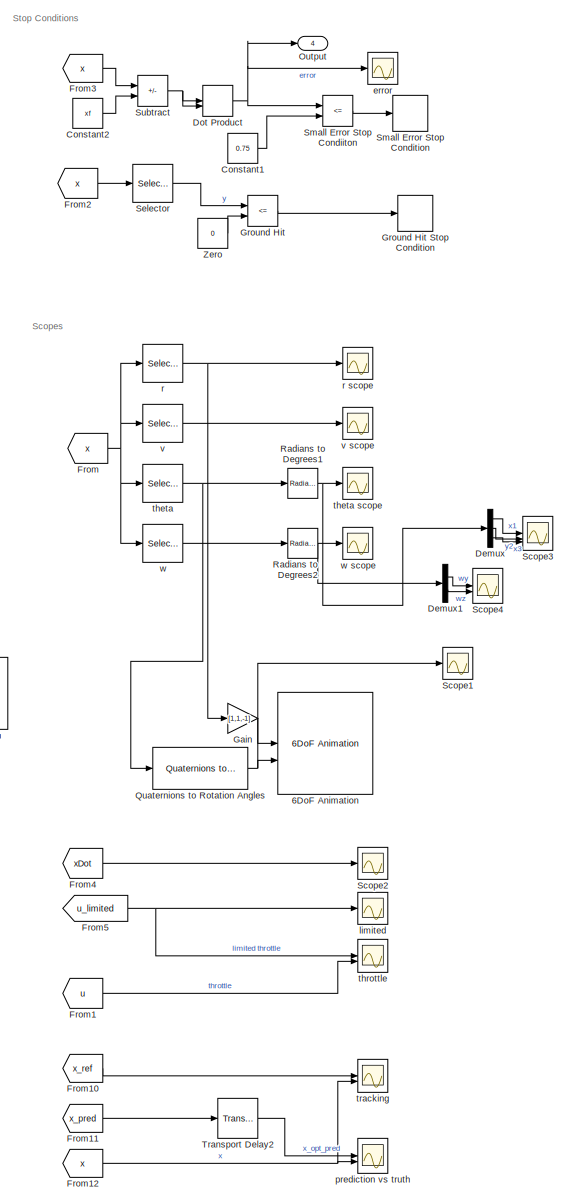
[diagram: root canvas - part 1/2, right side, full height]
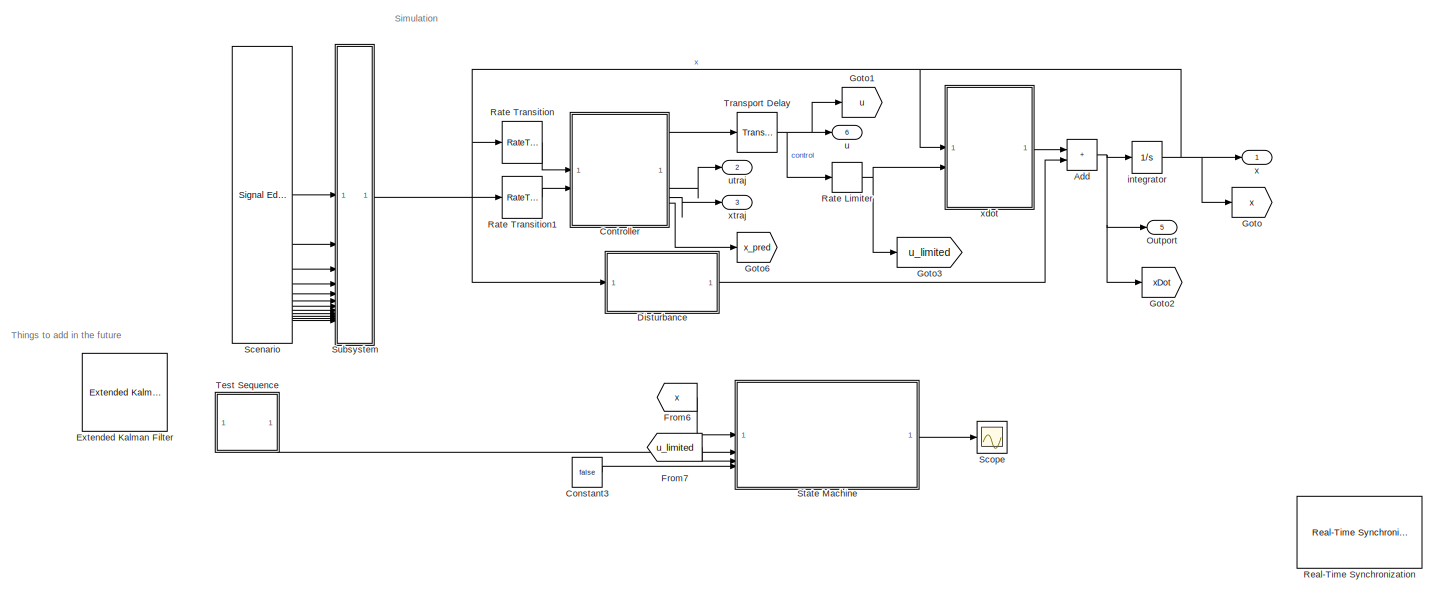
[diagram: root canvas - part 2/2, central region]
MODEL slx_a01fa81424ea
KIND model
CONFIG AbsTol = auto
CONFIG EnableMultiTasking = off
CONFIG FixedStep = auto
CONFIG MaxStep = auto
CONFIG MinStep = auto
CONFIG RelTol = 1e-3
CONFIG SampleTimeConstraint = Unconstrained
CONFIG SolverName = VariableStepAuto
CONFIG StartTime = 0.0
CONFIG StopTime = 5
WORKSPACE source: mxarray member
WORKSPACE com_error = 0
WORKSPACE controller_type: ControllerType (value not decoded)
WORKSPACE cost_u = [1 0 0]
WORKSPACE cost_x = [0 0 0 0 0 0 0 0 0 0 1]
WORKSPACE discrepancy = 0.5
WORKSPACE dof: object (value not decoded)
WORKSPACE dtime = 0.3
WORKSPACE enable_turbulence = 0
WORKSPACE g = 9.8
WORKSPACE inertia_error = 0
WORKSPACE mass_error = 0
WORKSPACE max_gimbal_rate = 5
WORKSPACE max_iter = 400
WORKSPACE max_throttle_rate = 0.5
WORKSPACE nominal_val = 5
WORKSPACE optimization_time = 0.5
WORKSPACE steps = 50
WORKSPACE stop_time = 100
WORKSPACE u0 = [0 0 0]
WORKSPACE vehicle: Vehicle (value not decoded)
WORKSPACE x0 = [0 100 100 0 0 0 0 -1.57079632679 0 0 0]
WORKSPACE xf = [0 0 0 0 0 0 0 -1.57079632679 0 0 0]
BLOCK [Reference] 6DoF Animation  REF=aerolibanim/6DoF Animation
  SourceBlock = aerolibanim/6DoF Animation
  SourceType = 6DoF_Animation
BLOCK [Sum] Add
  IconShape = rectangular
BLOCK [Constant] Constant1
  Value = 0.75
BLOCK [Constant] Constant2
  Value = xf
BLOCK [Constant] Constant3
  Value = false
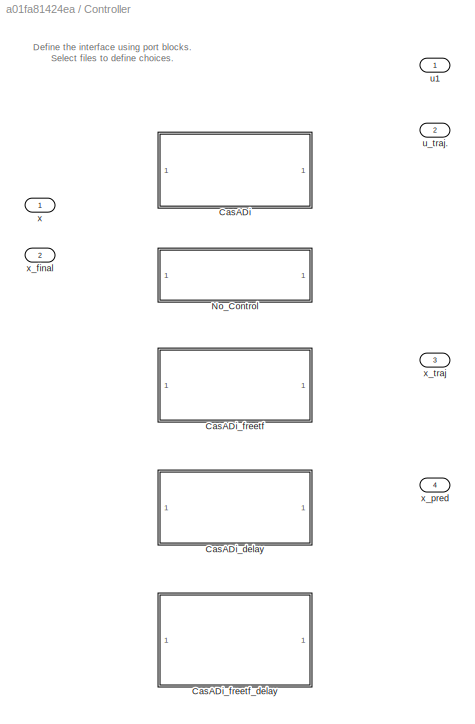
BLOCK [SubSystem] Controller
  Variant = on
  VariantChoicesEnumeration = ControllerType
  VariantChoicesSpecifier = {}
  VariantControlVariable = controller_type
BLOCK [SubSystem] Controller/CasADi
  ReferencedSubsystem = CasADi
  VariantControl = controller_type == ControllerType.CasADi
BLOCK [SubSystem] Controller/CasADi_delay
  ReferencedSubsystem = CasADi_delay
  VariantControl = controller_type == ControllerType.CasADi_delay
BLOCK [SubSystem] Controller/CasADi_freetf
  ReferencedSubsystem = CasADi_freetf
  VariantControl = controller_type == ControllerType.CasADi_freetf
BLOCK [SubSystem] Controller/CasADi_freetf_delay
  ReferencedSubsystem = CasADi_freetf_delay
  VariantControl = controller_type == ControllerType.CasADi_freetf_delay
BLOCK [SubSystem] Controller/No_Control
  ReferencedSubsystem = No_Control
  VariantControl = controller_type == ControllerType.No_Control
BLOCK [Outport] Controller/u1
BLOCK [Outport] Controller/u_traj.
  Port = 2
BLOCK [Inport] Controller/x
BLOCK [Inport] Controller/x_final
  Port = 2
BLOCK [Outport] Controller/x_pred
  Port = 4
BLOCK [Outport] Controller/x_traj
  Port = 3
BLOCK [Demux] Demux
  Outputs = 3
BLOCK [Demux] Demux1
  Outputs = 2
BLOCK [SubSystem] Disturbance
  ReferencedSubsystem = Disturbance
BLOCK [DotProduct] Dot Product
  OutDataTypeStr = Inherit: Inherit via internal rule
BLOCK [Reference] Extended Kalman Filter  REF=sharedTrackingLibrary/Extended Kalman Filter
  Commented = on
  LibrarySourceBlock = cstblocks/State Estimation/Extended Kalman Filter
  SourceBlock = sharedTrackingLibrary/Extended Kalman Filter
  SourceType = Extended Kalman Filter
BLOCK [From] From
  GotoTag = x
BLOCK [From] From1
  GotoTag = u
BLOCK [From] From10
  GotoTag = x_ref
BLOCK [From] From11
  GotoTag = x_pred
BLOCK [From] From12
  GotoTag = x
BLOCK [From] From2
  GotoTag = x
BLOCK [From] From3
  GotoTag = x
BLOCK [From] From4
  GotoTag = xDot
BLOCK [From] From5
  GotoTag = u_limited
BLOCK [From] From6
  GotoTag = x
BLOCK [From] From7
  GotoTag = u_limited
BLOCK [Gain] Gain
  Gain = [1,1,-1]
BLOCK [Goto] Goto
  GotoTag = x
BLOCK [Goto] Goto1
  GotoTag = u
BLOCK [Goto] Goto2
  GotoTag = xDot
BLOCK [Goto] Goto3
  GotoTag = u_limited
BLOCK [Goto] Goto6
  GotoTag = x_pred
BLOCK [RelationalOperator] Ground Hit
  InputSameDT = off
  Operator = <=
  OutDataTypeStr = boolean
  RndMeth = Simplest
BLOCK [Stop] Ground Hit Stop Condition
BLOCK [Outport] Outport
  Port = 5
  SignalName = x_dot
BLOCK [Outport] Output
  Port = 4
  SignalName = error
BLOCK [Reference] Quaternions to Rotation Angles  REF=sharedtransform/Quaternions to Rotation Angles
  AttributesFormatString = Rotation Order: %<rotationOrder>
  LibrarySourceBlock = aerolibtransform2/Quaternions to Rotation Angles
  SourceBlock = sharedtransform/Quaternions to Rotation Angles
  SourceType = Quat2Ang
BLOCK [Reference] Radians to Degrees1  REF=simulink_extras/Transformations/Radians
to Degrees
  SourceBlock = simulink_extras/Transformations/Radians\nto Degrees
  SourceType = RadiansToDegrees
BLOCK [Reference] Radians to Degrees2  REF=simulink_extras/Transformations/Radians
to Degrees
  SourceBlock = simulink_extras/Transformations/Radians\nto Degrees
  SourceType = RadiansToDegrees
BLOCK [RateLimiter] Rate Limiter
  FallingSlewLimit = -max_throttle_rate *100
  InitialCondition = u0
  RisingSlewLimit = max_throttle_rate*100
  SampleTimeMode = inherited
BLOCK [RateTransition] Rate Transition
  InitialCondition = x0
  OutPortSampleTime = optimization_time
BLOCK [RateTransition] Rate Transition1
  InitialCondition = xf
  OutPortSampleTime = optimization_time
BLOCK [Reference] Real-Time Synchronization  REF=sldrtlib/Real-Time
Synchronization
  SourceBlock = sldrtlib/Real-Time\nSynchronization
  SourceType = Simulink Desktop Real-Time Synchronization
BLOCK [Reference] Scenario  REF=SignalEditorBlockLib/Signal Editor
  LibrarySourceBlock = simulink/Sources/Signal Editor
  SourceBlock = SignalEditorBlockLib/Signal Editor
  SourceType = SignalEditor
  UserDataPersistent = on
BLOCK [Scope] Scope
  Floating = off
  NumInputPorts = 1
  ScopeSpecificationString = Simulink.scopes.TimeScopeBlockCfg('CurrentConfiguration', extmgr.ConfigurationSet(extmgr.Configuration('Core','General UI',true),extmgr.Configuration('Core','Source UI',true),extmgr.Configuration('Sources','WiredSimulink',true,'DataLoggingVariableName','ScopeData11'),extmgr.Configuration('Visuals','Time Domain',true,'SerializedDisplays',{struct('MinYLimReal','0.75','MaxYLimReal','3.25','YLabelReal...<+1461ch>
BLOCK [Scope] Scope1
  Floating = off
  NumInputPorts = 1
  ScopeSpecificationString = Simulink.scopes.TimeScopeBlockCfg('CurrentConfiguration', extmgr.ConfigurationSet(extmgr.Configuration('Core','General UI',true),extmgr.Configuration('Core','Source UI',true),extmgr.Configuration('Sources','WiredSimulink',true,'DataLoggingVariableName','ScopeData9'),extmgr.Configuration('Visuals','Time Domain',true,'SerializedDisplays',{struct('MinYLimReal','-2.68145','MaxYLimReal','3.7886','YLabe...<+1590ch>
BLOCK [Scope] Scope2
  Floating = off
  NumInputPorts = 1
  ScopeSpecificationString = Simulink.scopes.TimeScopeBlockCfg('CurrentConfiguration', extmgr.ConfigurationSet(extmgr.Configuration('Core','General UI',true),extmgr.Configuration('Core','Source UI',true),extmgr.Configuration('Sources','WiredSimulink',true,'DataLoggingVariableName','ScopeData11'),extmgr.Configuration('Visuals','Time Domain',true,'SerializedDisplays',{struct('MinYLimReal','-51.1711','MaxYLimReal','35.55627','YL...<+1540ch>
BLOCK [Scope] Scope3
  Floating = off
  NumInputPorts = 3
  ScopeSpecificationString = Simulink.scopes.TimeScopeBlockCfg('CurrentConfiguration', extmgr.ConfigurationSet(extmgr.Configuration('Core','General UI',true),extmgr.Configuration('Core','Source UI',true),extmgr.Configuration('Sources','WiredSimulink',true,'DataLoggingVariableName','ScopeData10'),extmgr.Configuration('Visuals','Time Domain',true,'SerializedDisplays',{struct('MinYLimReal','-106.01867','MaxYLimReal','54.16803','...<+1498ch>
BLOCK [Scope] Scope4
  Floating = off
  NumInputPorts = 2
  ScopeSpecificationString = Simulink.scopes.TimeScopeBlockCfg('CurrentConfiguration', extmgr.ConfigurationSet(extmgr.Configuration('Core','General UI',true),extmgr.Configuration('Core','Source UI',true),extmgr.Configuration('Sources','WiredSimulink',true,'DataLoggingVariableName','ScopeData11'),extmgr.Configuration('Visuals','Time Domain',true,'SerializedDisplays',{struct('MinYLimReal','-7.121','MaxYLimReal','64.08896','YLab...<+1454ch>
BLOCK [Selector] Selector
  IndexOptions = Index vector (dialog)
  Indices = [2]
  InputPortWidth = dof.nx
  OutputSizes = 1
BLOCK [RelationalOperator] Small Error Stop Condiiton
  InputSameDT = off
  Operator = <=
  OutDataTypeStr = boolean
  RndMeth = Simplest
BLOCK [Stop] Small Error Stop Condition
BLOCK [SubSystem] State Machine
  ReferencedSubsystem = State_Machine
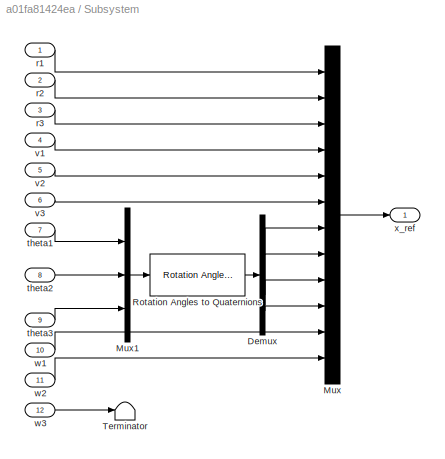
BLOCK [SubSystem] Subsystem
BLOCK [Demux] Subsystem/Demux
BLOCK [Mux] Subsystem/Mux
  DisplayOption = bar
  Inputs = 12
BLOCK [Mux] Subsystem/Mux1
  DisplayOption = bar
  Inputs = 3
BLOCK [Reference] Subsystem/Rotation Angles to Quaternions  REF=sharedtransform/Rotation Angles to Quaternions
  AttributesFormatString = Rotation Order: %<rotationOrder>
  LibrarySourceBlock = aerolibtransform2/Rotation Angles to Quaternions
  SourceBlock = sharedtransform/Rotation Angles to Quaternions
  SourceType = Ang2Quat
BLOCK [Terminator] Subsystem/Terminator
BLOCK [Inport] Subsystem/r1
BLOCK [Inport] Subsystem/r2
  Port = 2
BLOCK [Inport] Subsystem/r3
  Port = 3
BLOCK [Inport] Subsystem/theta1
  Port = 7
BLOCK [Inport] Subsystem/theta2
  Port = 8
BLOCK [Inport] Subsystem/theta3
  Port = 9
BLOCK [Inport] Subsystem/v1
  Port = 4
BLOCK [Inport] Subsystem/v2
  Port = 5
BLOCK [Inport] Subsystem/v3
  Port = 6
BLOCK [Inport] Subsystem/w1
  Port = 10
BLOCK [Inport] Subsystem/w2
  Port = 11
BLOCK [Inport] Subsystem/w3
  Port = 12
BLOCK [Outport] Subsystem/x_ref
BLOCK [Sum] Subtract
  IconShape = rectangular
  Inputs = +-
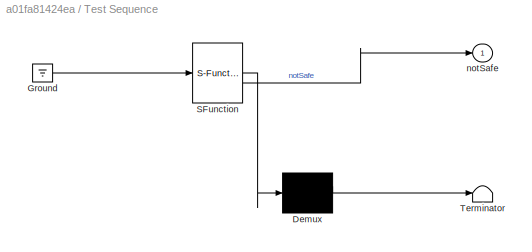
BLOCK [SubSystem] Test Sequence
  ErrorFcn = Stateflow.Translate.translate
  PermitHierarchicalResolution = ExplicitOnly
  SFBlockType = Test Sequence
  TreatAsAtomicUnit = on
BLOCK [Demux] Test Sequence/ Demux 
  Outputs = 1
BLOCK [Ground] Test Sequence/ Ground 
BLOCK [S-Function] Test Sequence/ SFunction 
  EnableBusSupport = on
  FunctionName = sf_sfun
  Parameters = 1
  PortCounts = [1 2]
  SFcnIsStateOwnerBlock = off
  SFunctionDeploymentMode = off
  Tag = Stateflow S-Function 4
BLOCK [Terminator] Test Sequence/ Terminator 
BLOCK [Outport] Test Sequence/notSafe
BLOCK [TransportDelay] Transport Delay
  DelayTime = optimization_time
  InitialOutput = u0 + [0.4,0,0]
BLOCK [TransportDelay] Transport Delay2
  DelayTime = optimization_time
  InitialOutput = x0'
BLOCK [Constant] Zero
  OutDataTypeStr = Inherit: Inherit via back propagation
  Value = 0
BLOCK [Scope] error
  Floating = off
  NumInputPorts = 1
  ScopeSpecificationString = Simulink.scopes.TimeScopeBlockCfg('CurrentConfiguration', extmgr.ConfigurationSet(extmgr.Configuration('Core','General UI',true),extmgr.Configuration('Core','Source UI',true),extmgr.Configuration('Sources','WiredSimulink',true,'DataLoggingVariableName','ScopeData2'),extmgr.Configuration('Visuals','Time Domain',true,'SerializedDisplays',{struct('MinYLimReal','-68.18493','MaxYLimReal','209.23133','Y...<+1542ch>
BLOCK [Integrator] integrator
  InitialCondition = x0
BLOCK [Scope] limited
  Floating = off
  NumInputPorts = 1
  ScopeSpecificationString = Simulink.scopes.TimeScopeBlockCfg('CurrentConfiguration', extmgr.ConfigurationSet(extmgr.Configuration('Core','General UI',true),extmgr.Configuration('Core','Source UI',true),extmgr.Configuration('Sources','WiredSimulink',true,'DataLoggingVariableName','ScopeData16'),extmgr.Configuration('Visuals','Time Domain',true,'SerializedDisplays',{struct('MinYLimReal','-0.27698','MaxYLimReal','0.74749','YLa...<+1524ch>
BLOCK [Scope] prediction vs truth
  Floating = off
  NumInputPorts = 2
  ScopeSpecificationString = Simulink.scopes.TimeScopeBlockCfg('CurrentConfiguration', extmgr.ConfigurationSet(extmgr.Configuration('Core','General UI',true),extmgr.Configuration('Core','Source UI',true),extmgr.Configuration('Sources','WiredSimulink',true,'DataLoggingVariableName','ScopeData18'),extmgr.Configuration('Visuals','Time Domain',true,'SerializedDisplays',{struct('MinYLimReal','-23.38198','MaxYLimReal','115.17042','...<+1627ch>
BLOCK [Selector] r
  IndexOptions = Index vector (dialog)
  Indices = dof.ir
  InputPortWidth = dof.nx
  OutputSizes = 1
BLOCK [Scope] r scope
  Floating = off
  NumInputPorts = 1
  ScopeSpecificationString = Simulink.scopes.TimeScopeBlockCfg('CurrentConfiguration', extmgr.ConfigurationSet(extmgr.Configuration('Core','General UI',true),extmgr.Configuration('Core','Source UI',true),extmgr.Configuration('Sources','WiredSimulink',true,'DataLoggingVariableName','ScopeData9'),extmgr.Configuration('Visuals','Time Domain',true,'SerializedDisplays',{struct('MinYLimReal','-45.82371','MaxYLimReal','116.20263','Y...<+1473ch>
BLOCK [Selector] theta
  IndexOptions = Index vector (dialog)
  Indices = dof.itheta
  InputPortWidth = dof.nx
  OutputSizes = 1
BLOCK [Scope] theta scope
  Floating = off
  NumInputPorts = 1
  ScopeSpecificationString = Simulink.scopes.TimeScopeBlockCfg('CurrentConfiguration', extmgr.ConfigurationSet(extmgr.Configuration('Core','General UI',true),extmgr.Configuration('Core','Source UI',true),extmgr.Configuration('Sources','WiredSimulink',true,'DataLoggingVariableName','ScopeData21'),extmgr.Configuration('Visuals','Time Domain',true,'SerializedDisplays',{struct('MinYLimReal','-106.01867','MaxYLimReal','54.16803','...<+1582ch>
BLOCK [Scope] throttle
  Floating = off
  NumInputPorts = 2
  ScopeSpecificationString = Simulink.scopes.TimeScopeBlockCfg('CurrentConfiguration', extmgr.ConfigurationSet(extmgr.Configuration('Core','General UI',true),extmgr.Configuration('Core','Source UI',true),extmgr.Configuration('Sources','WiredSimulink',true,'DataLoggingVariableName','ScopeData22'),extmgr.Configuration('Visuals','Time Domain',true,'SerializedDisplays',{struct('MinYLimReal','0.09898','MaxYLimReal','1.10011','YLab...<+1553ch>
BLOCK [Scope] tracking
  Floating = off
  NumInputPorts = 2
  ScopeSpecificationString = Simulink.scopes.TimeScopeBlockCfg('CurrentConfiguration', extmgr.ConfigurationSet(extmgr.Configuration('Core','General UI',true),extmgr.Configuration('Core','Source UI',true),extmgr.Configuration('Sources','WiredSimulink',true,'DataLoggingVariableName','ScopeData23'),extmgr.Configuration('Visuals','Time Domain',true,'SerializedDisplays',{struct('MinYLimReal','-23.30608','MaxYLimReal','114.98798','...<+1548ch>
BLOCK [Outport] u
  Port = 6
  SignalName = u
BLOCK [Outport] utraj
  Port = 2
  SignalName = utraj
BLOCK [Selector] v
  IndexOptions = Index vector (dialog)
  Indices = dof.iv
  InputPortWidth = dof.nx
  OutputSizes = 1
BLOCK [Scope] v scope
  Floating = off
  NumInputPorts = 1
  ScopeSpecificationString = Simulink.scopes.TimeScopeBlockCfg('CurrentConfiguration', extmgr.ConfigurationSet(extmgr.Configuration('Core','General UI',true),extmgr.Configuration('Core','Source UI',true),extmgr.Configuration('Sources','WiredSimulink',true,'DataLoggingVariableName','ScopeData10'),extmgr.Configuration('Visuals','Time Domain',true,'SerializedDisplays',{struct('MinYLimReal','-60.97584','MaxYLimReal','6.77509','YL...<+1493ch>
BLOCK [Selector] w
  IndexOptions = Index vector (dialog)
  Indices = dof.iw
  InputPortWidth = dof.nx
  OutputSizes = 1
BLOCK [Scope] w scope
  Floating = off
  NumInputPorts = 1
  ScopeSpecificationString = Simulink.scopes.TimeScopeBlockCfg('CurrentConfiguration', extmgr.ConfigurationSet(extmgr.Configuration('Core','General UI',true),extmgr.Configuration('Core','Source UI',true),extmgr.Configuration('Sources','WiredSimulink',true,'DataLoggingVariableName','ScopeData14'),extmgr.Configuration('Visuals','Time Domain',true,'SerializedDisplays',{struct('MinYLimReal','-7.121','MaxYLimReal','64.08896','YLab...<+1519ch>
BLOCK [Outport] x
  SignalName = x
BLOCK [SubSystem] xdot
  ReferencedSubsystem = EoM_Euler5DoF
BLOCK [Outport] xtraj
  Port = 3
  SignalName = xtraj
ANNOTATION (root): Scopes
ANNOTATION (root): Simulation
ANNOTATION (root): Stop Conditions
ANNOTATION (root): Things to add in the future
ANNOTATION Controller: Define the interface using port blocks. Select files to define choices.
NET Add:1 -> Goto2:1, Outport:1, integrator:1
LINE Constant1:1 -> Small Error Stop Condiiton:2
LINE Constant2:1 -> Subtract:2
LINE Constant3:1 -> State Machine:4
LINE Controller:1 -> Transport Delay:1
LINE Controller:2 -> utraj:1
LINE Controller:3 -> xtraj:1
LINE Controller:4 -> Goto6:1
LINE Demux1:1 -> Scope4:1
LINE Demux1:2 -> Scope4:2
LINE Demux:1 -> Scope3:1
LINE Demux:2 -> Scope3:2
LINE Demux:3 -> Scope3:3
LINE Disturbance:1 -> Add:2
NET Dot Product:1 -> Output:1, Small Error Stop Condiiton:1, error:1
LINE From10:1 -> tracking:1
LINE From11:1 -> Transport Delay2:1
NET From12:1 -> prediction vs truth:2, tracking:2
LINE From1:1 -> throttle:2
LINE From2:1 -> Selector:1
LINE From3:1 -> Subtract:1
LINE From4:1 -> Scope2:1
NET From5:1 -> limited:1, throttle:1
LINE From6:1 -> State Machine:1
LINE From7:1 -> State Machine:3
NET From:1 -> r:1, theta:1, v:1, w:1
LINE Gain:1 -> 6DoF Animation:1
LINE Ground Hit:1 -> Ground Hit Stop Condition:1
NET Quaternions to Rotation Angles:1 -> 6DoF Animation:2, Scope1:1
NET Radians to Degrees1:1 -> Demux:1, theta scope:1
NET Radians to Degrees2:1 -> Demux1:1, w scope:1
NET Rate Limiter:1 -> Goto3:1, xdot:2
LINE Rate Transition1:1 -> Controller:2
LINE Rate Transition:1 -> Controller:1
LINE Scenario:1 -> Subsystem:1
LINE Scenario:10 -> Subsystem:10
LINE Scenario:11 -> Subsystem:11
LINE Scenario:12 -> Subsystem:12
LINE Scenario:2 -> Subsystem:2
LINE Scenario:3 -> Subsystem:3
LINE Scenario:4 -> Subsystem:4
LINE Scenario:5 -> Subsystem:5
LINE Scenario:6 -> Subsystem:6
LINE Scenario:7 -> Subsystem:7
LINE Scenario:8 -> Subsystem:8
LINE Scenario:9 -> Subsystem:9
LINE Selector:1 -> Ground Hit:1
LINE Small Error Stop Condiiton:1 -> Small Error Stop Condition:1
LINE State Machine:1 -> Scope:1
LINE Subsystem/Demux:1 -> Subsystem/Mux:7
LINE Subsystem/Demux:2 -> Subsystem/Mux:8
LINE Subsystem/Demux:3 -> Subsystem/Mux:9
LINE Subsystem/Demux:4 -> Subsystem/Mux:10
LINE Subsystem/Mux1:1 -> Subsystem/Rotation Angles to Quaternions:1
LINE Subsystem/Mux:1 -> Subsystem/x_ref:1
LINE Subsystem/Rotation Angles to Quaternions:1 -> Subsystem/Demux:1
LINE Subsystem/r1:1 -> Subsystem/Mux:1
LINE Subsystem/r2:1 -> Subsystem/Mux:2
LINE Subsystem/r3:1 -> Subsystem/Mux:3
LINE Subsystem/theta1:1 -> Subsystem/Mux1:1
LINE Subsystem/theta2:1 -> Subsystem/Mux1:2
LINE Subsystem/theta3:1 -> Subsystem/Mux1:3
LINE Subsystem/v1:1 -> Subsystem/Mux:4
LINE Subsystem/v2:1 -> Subsystem/Mux:5
LINE Subsystem/v3:1 -> Subsystem/Mux:6
LINE Subsystem/w1:1 -> Subsystem/Mux:11
LINE Subsystem/w2:1 -> Subsystem/Mux:12
LINE Subsystem/w3:1 -> Subsystem/Terminator:1
LINE Subsystem:1 -> Rate Transition1:1
NET Subtract:1 -> Dot Product:1, Dot Product:2
LINE Test Sequence:1 -> State Machine:2
LINE Transport Delay2:1 -> prediction vs truth:1
NET Transport Delay:1 -> Goto1:1, Rate Limiter:1, u:1
LINE Zero:1 -> Ground Hit:2
NET integrator:1 -> Disturbance:1, Goto:1, Rate Transition:1, x:1, xdot:1
NET r:1 -> Gain:1, r scope:1
NET theta:1 -> Quaternions to Rotation Angles:1, Radians to Degrees1:1
LINE v:1 -> v scope:1
LINE w:1 -> Radians to Degrees2:1
LINE xdot:1 -> Add:1
note: NET lines group one-source signal fan-out (src -> all destinations, sorted); 1:1 wires keep LINE
CHART Test Sequence states=3 transitions=3
  STATE_LABEL 'Scenario_1'
  STATE_LABEL 'step_1'
  STATE_LABEL 'step_2\nnotSafe = true;'
  STATE_LABEL '[\nafter(5, sec)\n]'
  STATE_LABEL 'step_1'
  STATE_LABEL 'step_2\nnotSafe = true;'
CHART  states=0 transitions=0
